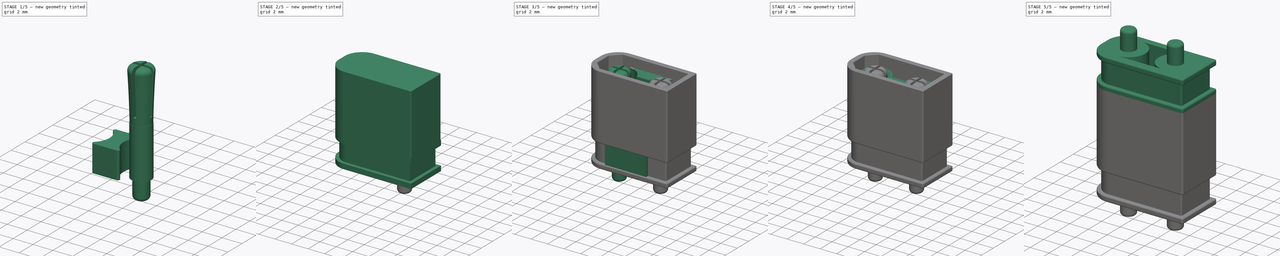
[diagram: build sequence overview — one tinted view per stage of 5, left to right]
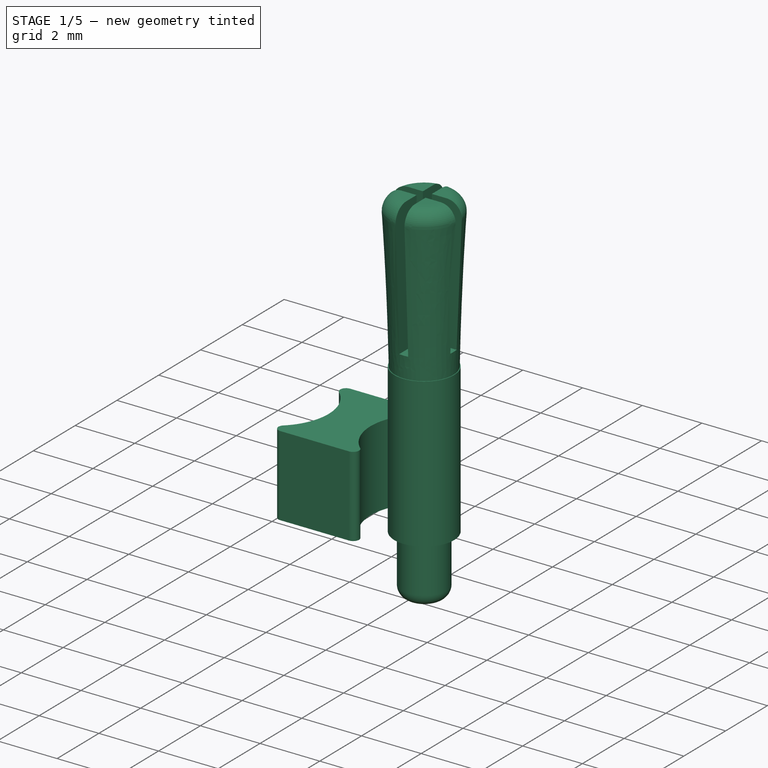
[diagram: stage 1 of 5 — iso view after this stage's code; geometry added in this stage tinted green]
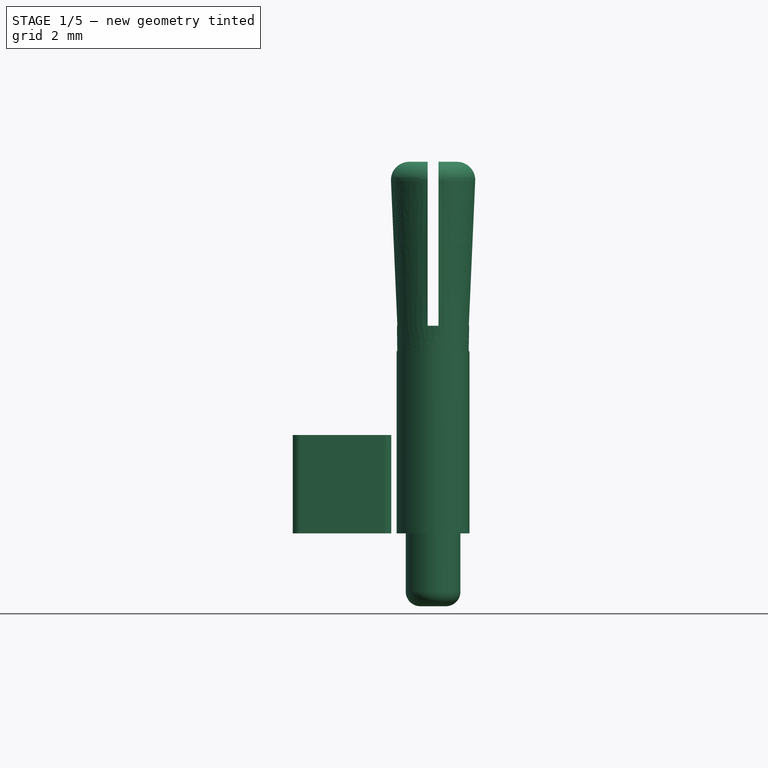
[diagram: stage 1 of 5 — front view after this stage's code; geometry added in this stage tinted green]
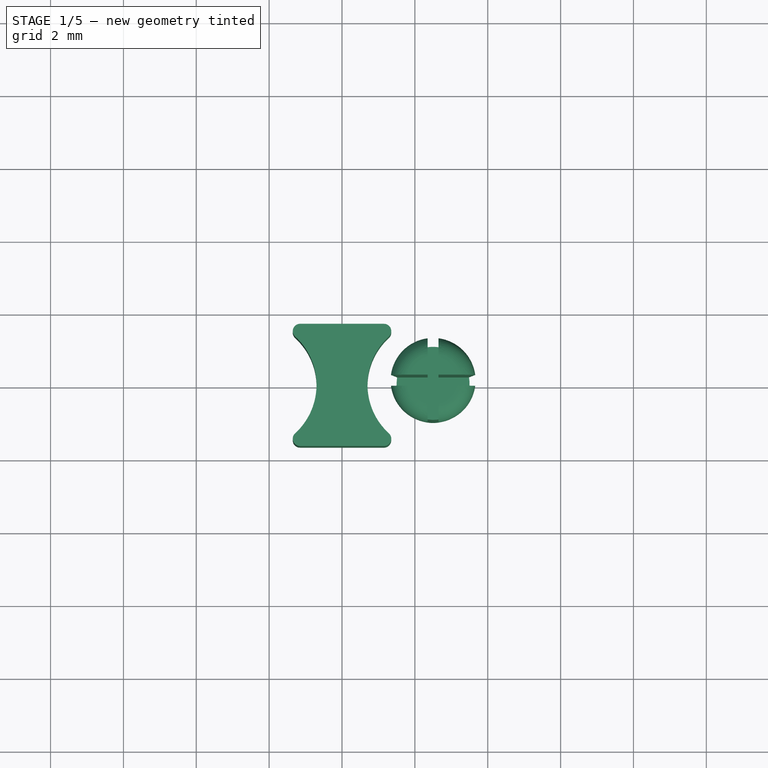
[diagram: stage 1 of 5 — top view after this stage's code; geometry added in this stage tinted green]
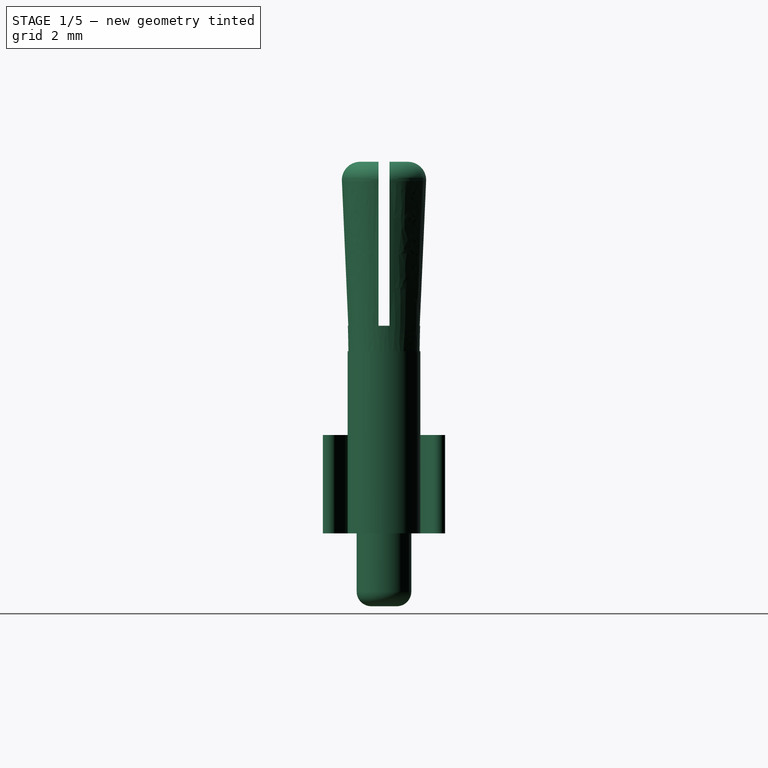
[diagram: stage 1 of 5 — right view after this stage's code; geometry added in this stage tinted green]
FCSTD DOCUMENT  (FreeCAD 0.16R6703 (Git))
Label: XT30U
License: All rights reserved
LicenseURL: http://en.wikipedia.org/wiki/All_rights_reserved
objects: Part::Extrusion×15, Sketcher::SketchObject×13, Part::Fillet×13, Part::MultiFuse×8, Part::Mirroring×8, Part::Cut×7, Part::Compound×5, Part::Offset×2, Part::Chamfer×2, Part::Loft×1
note: 74 computed .brp shape members not serialized (recipe doc carries the construction recipe); baked Part::Feature solids carry a one-line shape summary decoded from their .brp

FEATURE [Sketcher::SketchObject] Sketch002
  Placement = pos=(0,0,0) rot=(1,0,0;3.14159rad)
  sketch-geometry (4):
    g0: ArcOfCircle CenterX=-2.5 CenterY=0 CenterZ=0 NormalX=0 NormalY=0 NormalZ=1 Radius=1.8 StartAngle=5.0841 EndAngle=7.48227
    g1: ArcOfCircle CenterX=2.5 CenterY=0 CenterZ=0 NormalX=0 NormalY=0 NormalZ=1 Radius=1.8 StartAngle=1.94251 EndAngle=4.34068
    g2: LineSegment StartX=-1.84622 StartY=1.67707 StartZ=0 EndX=1.84622 EndY=1.67707 EndZ=0
    g3: LineSegment StartX=-1.84622 StartY=-1.67707 StartZ=0 EndX=1.84622 EndY=-1.67707 EndZ=0
  constraints (12):
    c: PointOnObject(g1,g-1)
    c: DistanceX(g1) = 2.5
    c: Symmetric(g1,g0,g-2)
    c: Radius(g0) = 1.8
    c: Equal(g0,g1)
    c: Coincident(g2,g0)
    c: Coincident(g2,g1)
    c: Horizontal(g2)
    c: Coincident(g3,g0)
    c: Coincident(g3,g1)
    c: Horizontal(g3)
    c: Symmetric(g0,g0,g-1)
FEATURE [Part::Extrusion] Extrude004
  Base = -> Sketch002
  Dir = (0,0,2.7)
  Solid = true
FEATURE [Part::Fillet] Fillet005
  Base = -> Extrude004
  Edges = 4 edges r=0.2: [Edge1,Edge2,Edge5,Edge8]
FEATURE [Sketcher::SketchObject] Sketch003
  Placement = pos=(0,0,0) rot=(1,0,0;3.14159rad)
  sketch-geometry (1):
    g0: Circle CenterX=-2.5 CenterY=0 CenterZ=0 NormalX=0 NormalY=0 NormalZ=1 Radius=1
  constraints (3):
    c: PointOnObject(g0,g-1)
    c: DistanceX(g0) = -2.5
    c: Radius(g0) = 1
FEATURE [Sketcher::SketchObject] Sketch004
  Placement = pos=(0,0,6) rot=(1,0,0;3.14159rad)
  sketch-geometry (1):
    g0: Circle CenterX=-2.5 CenterY=0 CenterZ=0 NormalX=0 NormalY=0 NormalZ=1 Radius=1
  constraints (3):
    c: PointOnObject(g0,g-1)
    c: DistanceX(g0) = -2.5
    c: Radius(g0) = 1
FEATURE [Sketcher::SketchObject] Sketch005
  Placement = pos=(0,0,10.2) rot=(1,0,0;3.14159rad)
  sketch-geometry (1):
    g0: Circle CenterX=-2.5 CenterY=0 CenterZ=0 NormalX=0 NormalY=0 NormalZ=1 Radius=1.2
  constraints (3):
    c: PointOnObject(g0,g-1)
    c: DistanceX(g0) = -2.5
    c: Radius(g0) = 1.2
FEATURE [Part::Loft] Loft  label="pin"
  Closed = false
  Ruled = false
  Sections = -> [Sketch003,Sketch004,Sketch005]
  Solid = true
FEATURE [Part::Fillet] Fillet006  label="pin001"
  Base = -> Loft
  Edges = 1 edges r=0.5: [Edge3]
FEATURE [Sketcher::SketchObject] Sketch006
  Placement = pos=(0,0,10.2) rot=(0,0,1;0rad)
  sketch-geometry (17):
    g0: LineSegment StartX=-2.65 StartY=2.1 StartZ=0 EndX=-2.35 EndY=2.1 EndZ=0
    g1: LineSegment StartX=-2.35 StartY=2.1 StartZ=0 EndX=-2.35 EndY=0.15 EndZ=0
    g2: LineSegment StartX=-2.35 StartY=-2.1 StartZ=0 EndX=-2.65 EndY=-2.1 EndZ=0
    g3: LineSegment StartX=-2.65 StartY=-2.1 StartZ=0 EndX=-2.65 EndY=-0.15 EndZ=0
    g4: LineSegment StartX=-4.36572 StartY=0.15 StartZ=0 EndX=-2.65 EndY=0.15 EndZ=0
    g5: LineSegment StartX=-0.910869 StartY=0.15 StartZ=0 EndX=-0.910869 EndY=-0.15 EndZ=0
    g6: LineSegment StartX=-0.910869 StartY=-0.15 StartZ=0 EndX=-2.35 EndY=-0.15 EndZ=0
    g7: LineSegment StartX=-4.36572 StartY=-0.15 StartZ=0 EndX=-4.36572 EndY=0.15 EndZ=0
    g8: GeomPoint [constr] X=-2.65 Y=0.15 Z=0
    g9: LineSegment [constr] StartX=-2.5 StartY=1.25458 StartZ=0 EndX=-2.5 EndY=-0.7 EndZ=0
    g10: GeomPoint [constr] X=-2.65 Y=-0.15 Z=0
    g11: GeomPoint [constr] X=-2.35 Y=0.15 Z=0
    g12: GeomPoint [constr] X=-2.35 Y=-0.15 Z=0
    g13: LineSegment StartX=-2.35 StartY=0.15 StartZ=0 EndX=-0.910869 EndY=0.15 EndZ=0
    g14: LineSegment StartX=-2.65 StartY=0.15 StartZ=0 EndX=-2.65 EndY=2.1 EndZ=0
    g15: LineSegment StartX=-2.65 StartY=-0.15 StartZ=0 EndX=-4.36572 EndY=-0.15 EndZ=0
    g16: LineSegment StartX=-2.35 StartY=-0.15 StartZ=0 EndX=-2.35 EndY=-2.1 EndZ=0
  constraints (39):
    c: Coincident(g0,g1)
    c: Coincident(g16,g2)
    c: Coincident(g2,g3)
    c: Coincident(g14,g0)
    c: Horizontal(g0)
    c: Horizontal(g2)
    c: Vertical(g1)
    c: Vertical(g3)
    c: Coincident(g13,g5)
    c: Coincident(g5,g6)
    c: Coincident(g15,g7)
    c: Coincident(g7,g4)
    c: Horizontal(g4)
    c: Horizontal(g6)
    c: Vertical(g5)
    c: Vertical(g7)
    c: PointOnObject(g8,g3)
    c: PointOnObject(g8,g4)
    c: Symmetric(g4,g15,g-1)
    c: Equal(g7,g0)
    c: Distance(g7) = 0.3
    c: Vertical(g9)
    c: Symmetric(g0,g0,g9)
    c: DistanceX(g9) = -2.5
    c: PointOnObject(g10,g3)
    c: PointOnObject(g10,g6)
    c: PointOnObject(g11,g4)
    c: PointOnObject(g11,g1)
    c: PointOnObject(g12,g6)
    c: PointOnObject(g12,g1)
    c: Tangent(g4,g13)
    c: PointOnObject(g3,g6)
    c: Coincident(g14,g4)
    c: Tangent(g3,g14)
    c: Tangent(g6,g15)
    c: PointOnObject(g15,g3)
    c: Coincident(g1,g13)
    c: Coincident(g16,g6)
    c: Tangent(g1,g16)
FEATURE [Part::Extrusion] Extrude005
  Base = -> Sketch006
  Dir = (0,0,-4.5)
  Solid = true
FEATURE [Part::Cut] Cut002
  Base = -> Fillet006
  Tool = -> Extrude005
FEATURE [Sketcher::SketchObject] Sketch007
  Placement = pos=(0,0,0) rot=(1,0,0;3.14159rad)
  sketch-geometry (1):
    g0: Circle CenterX=-2.5 CenterY=0 CenterZ=0 NormalX=0 NormalY=0 NormalZ=1 Radius=0.75
  constraints (3):
    c: PointOnObject(g0,g-1)
    c: Radius(g0) = 0.75
    c: DistanceX(g0) = -2.5
FEATURE [Part::Extrusion] Extrude006
  Base = -> Sketch007
  Dir = (0,0,-2)
  Solid = true
FEATURE [Part::MultiFuse] Fusion001  label="pin002"
  Shapes = -> [Extrude006,Cut002]
FEATURE [Part::Extrusion] Extrude007  label="pinHole"
  Base = -> Sketch003
  Dir = (0,0,5)
  Solid = true
FEATURE [Part::Fillet] Fillet013  label="pin003"
  Base = -> Fusion001
  Edges = 1 edges r=0.4: [Edge1]
FEATURE [Part::Mirroring] Part__Mirroring  label="pin003 (Mirror #7)"
  Base = (0,0,0)
  Normal = (1,0,0)
  Source = -> Fillet013
FEATURE [Part::Mirroring] Part__Mirroring007  label="pinHole (Mirror #8)"
  Base = (0,0,0)
  Normal = (1,0,0)
  Source = -> Extrude007
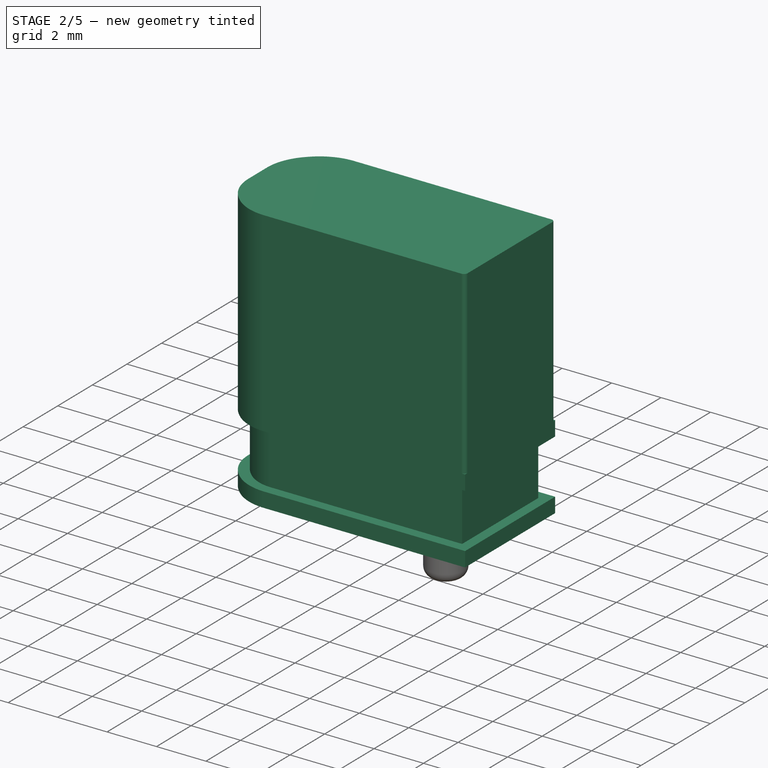
[diagram: stage 2 of 5 — iso view after this stage's code; geometry added in this stage tinted green]
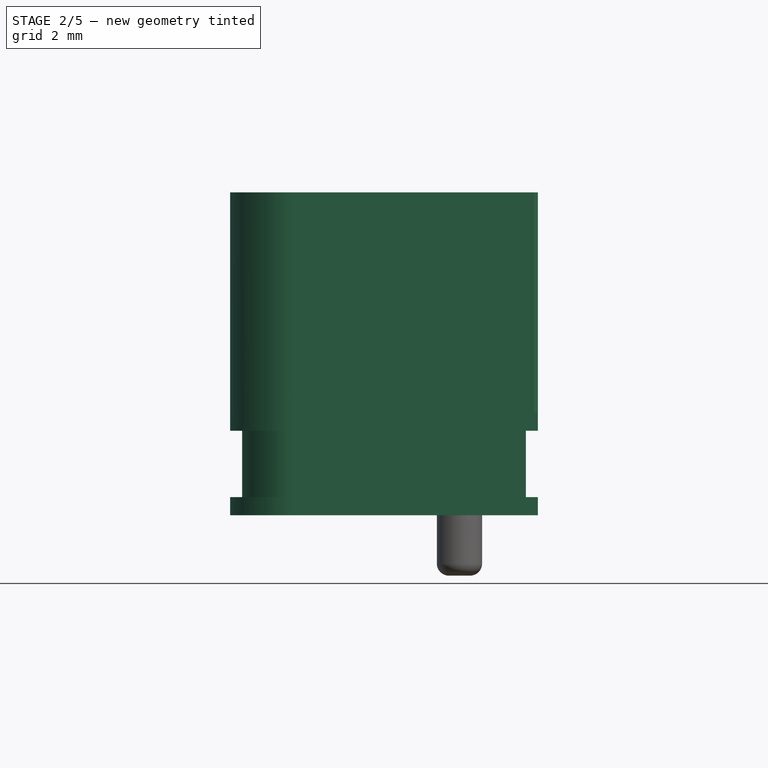
[diagram: stage 2 of 5 — front view after this stage's code; geometry added in this stage tinted green]
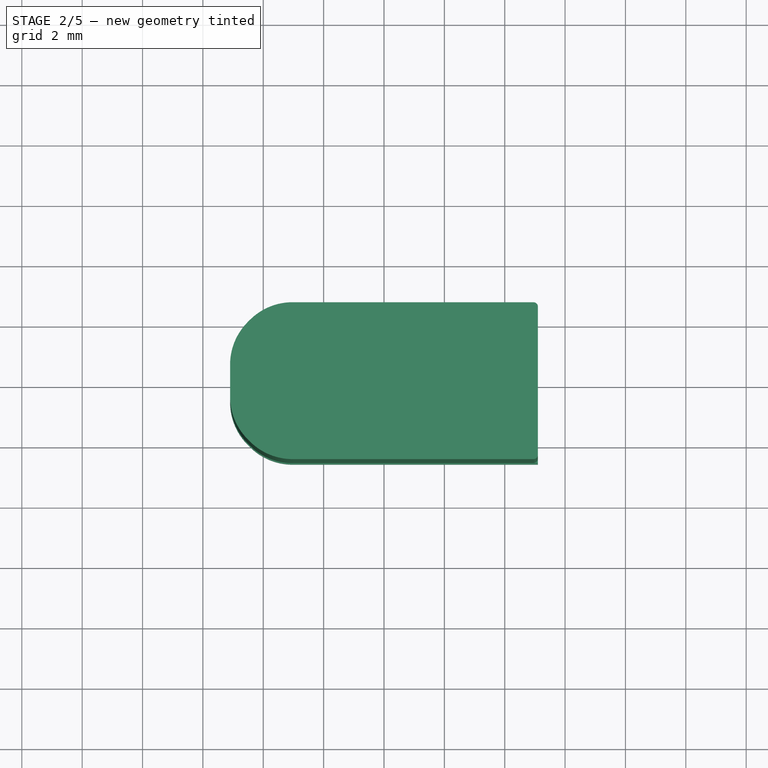
[diagram: stage 2 of 5 — top view after this stage's code; geometry added in this stage tinted green]
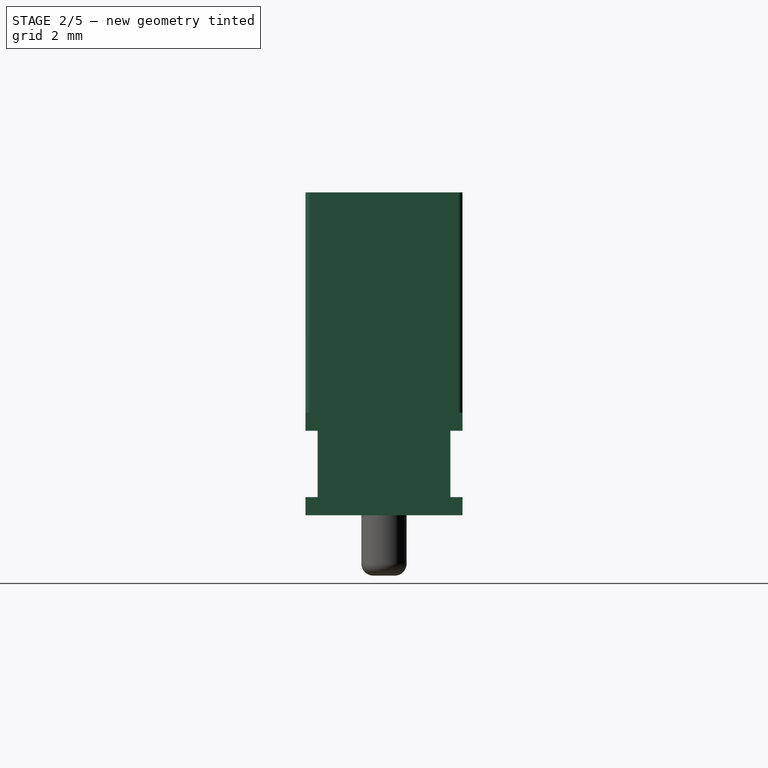
[diagram: stage 2 of 5 — right view after this stage's code; geometry added in this stage tinted green]
FEATURE [Sketcher::SketchObject] Sketch
  sketch-geometry (6):
    g0: LineSegment StartX=-3.53923 StartY=2.6 StartZ=0 EndX=5.1 EndY=2.6 EndZ=0
    g1: LineSegment StartX=5.1 StartY=2.6 StartZ=0 EndX=5.1 EndY=-2.6 EndZ=0
    g2: LineSegment StartX=5.1 StartY=-2.6 StartZ=0 EndX=-3.53923 EndY=-2.6 EndZ=0
    g3: LineSegment StartX=-5.1 StartY=-1.03923 StartZ=0 EndX=-5.1 EndY=1.03923 EndZ=0
    g4: ArcOfCircle CenterX=-2.5 CenterY=0 CenterZ=0 NormalX=0 NormalY=0 NormalZ=1 Radius=2.8 StartAngle=1.95105 EndAngle=2.76134
    g5: ArcOfCircle CenterX=-2.5 CenterY=0 CenterZ=0 NormalX=0 NormalY=0 NormalZ=1 Radius=2.8 StartAngle=3.52184 EndAngle=4.33214
  constraints (19):
    c: Coincident(g0,g1)
    c: Coincident(g1,g2)
    c: Horizontal(g0)
    c: Horizontal(g2)
    c: Vertical(g1)
    c: Vertical(g3)
    c: Distance(g1) = 5.2
    c: PointOnObject(g4,g-1)
    c: DistanceX(g4) = -2.5
    c: Coincident(g0,g4)
    c: Coincident(g3,g4)
    c: Coincident(g5,g4)
    c: Coincident(g3,g5)
    c: Coincident(g2,g5)
    c: Radius(g4) = 2.8
    c: Equal(g4,g5)
    c: DistanceX(g0) = 5.1
    c: DistanceX(g3) = -5.1
    c: Symmetric(g0,g1,g-1)
FEATURE [Part::Extrusion] Extrude
  Base = -> Sketch
  Dir = (0,0,3.4)
  Solid = true
FEATURE [Part::Fillet] Fillet
  Base = -> Extrude
  Edges = 4 edges r=2: [Edge1,Edge2,Edge5,Edge14]
FEATURE [Part::Extrusion] Extrude001
  Base = -> Sketch
  Dir = (0,0,2.2)
  Placement = pos=(0,0,0.6) rot=(0,0,1;0rad)
  Solid = true
FEATURE [Part::Fillet] Fillet001
  Base = -> Extrude001
  Edges = 4 edges r=2: [Edge1,Edge2,Edge5,Edge14]
FEATURE [Part::Offset] Offset
  Fill = false
  Intersection = false
  Join = 2
  Mode = 0
  SelfIntersection = false
  Source = -> Fillet
  Value = -0.4
FEATURE [Part::Cut] Cut
  Base = -> Fillet001
  Tool = -> Offset
FEATURE [Part::Cut] Cut001
  Base = -> Fillet
  Tool = -> Cut
FEATURE [Part::Extrusion] Extrude002
  Base = -> Sketch
  Dir = (0,0,7.3)
  Placement = pos=(0,0,3.4) rot=(0,0,1;0rad)
  Solid = true
FEATURE [Part::Fillet] Fillet003
  Base = -> Extrude002
  Edges = 6 edges: [Edge1 r=2,Edge2 r=2,Edge5 r=2,Edge8 r=0.15,Edge11 r=0.15,Edge14 r=2]
FEATURE [Sketcher::SketchObject] Sketch001
  Placement = pos=(0,0,10.7) rot=(0,0,1;0rad)
  sketch-geometry (6):
    g0: LineSegment StartX=-3.5 StartY=2 StartZ=0 EndX=4.5 EndY=2 EndZ=0
    g1: LineSegment StartX=4.5 StartY=2 StartZ=0 EndX=4.5 EndY=-2 EndZ=0
    g2: LineSegment StartX=4.5 StartY=-2 StartZ=0 EndX=-3.5 EndY=-2 EndZ=0
    g3: LineSegment StartX=-4.5 StartY=-1 StartZ=0 EndX=-4.5 EndY=1 EndZ=0
    g4: LineSegment StartX=-4.5 StartY=1 StartZ=0 EndX=-3.5 EndY=2 EndZ=0
    g5: LineSegment StartX=-4.5 StartY=-1 StartZ=0 EndX=-3.5 EndY=-2 EndZ=0
  constraints (10):
    c: Coincident(g0,g1)
    c: Coincident(g1,g2)
    c: Horizontal(g0)
    c: Horizontal(g2)
    c: Vertical(g1)
    c: Vertical(g3)
    c: Coincident(g3,g4)
    c: Coincident(g0,g4)
    c: Coincident(g2,g5)
    c: Coincident(g3,g5)
FEATURE [Part::Extrusion] Extrude003
  Base = -> Sketch001
  Dir = (0,0,-8)
  Solid = true
FEATURE [Part::Fillet] Fillet004
  Base = -> Extrude003
  Edges = 6 edges r=0.15: [Edge1,Edge2,Edge5,Edge8,Edge11,Edge14]
FEATURE [Part::MultiFuse] Fusion002
  Shapes = -> [Fillet004,Fillet005,Extrude007,Part__Mirroring007]
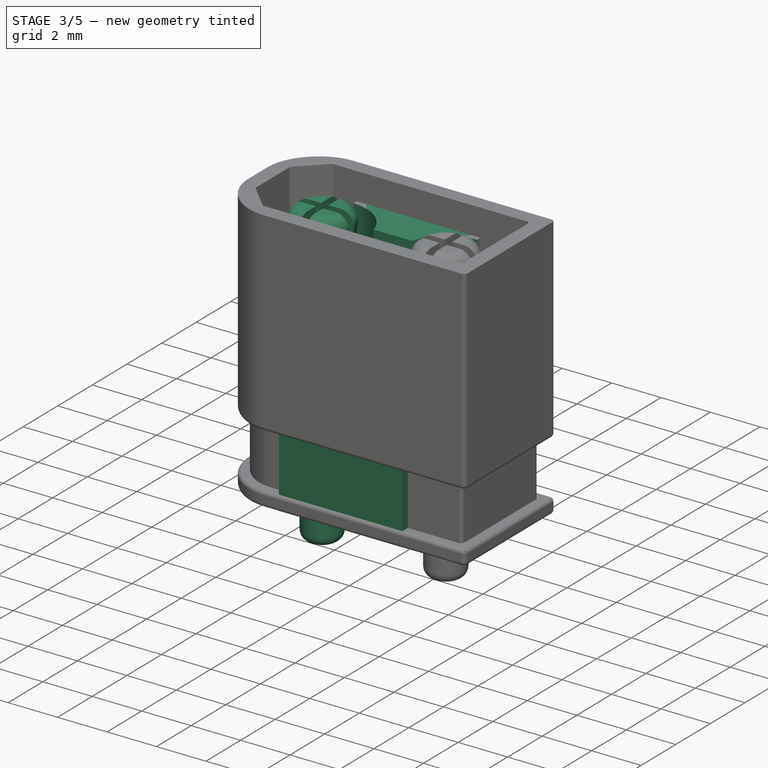
[diagram: stage 3 of 5 — iso view after this stage's code; geometry added in this stage tinted green]
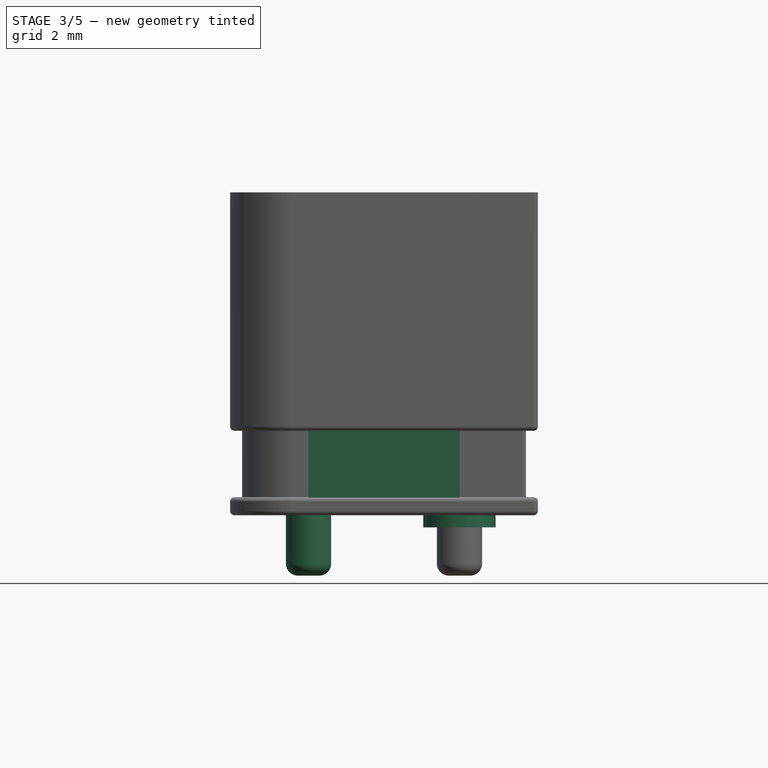
[diagram: stage 3 of 5 — front view after this stage's code; geometry added in this stage tinted green]
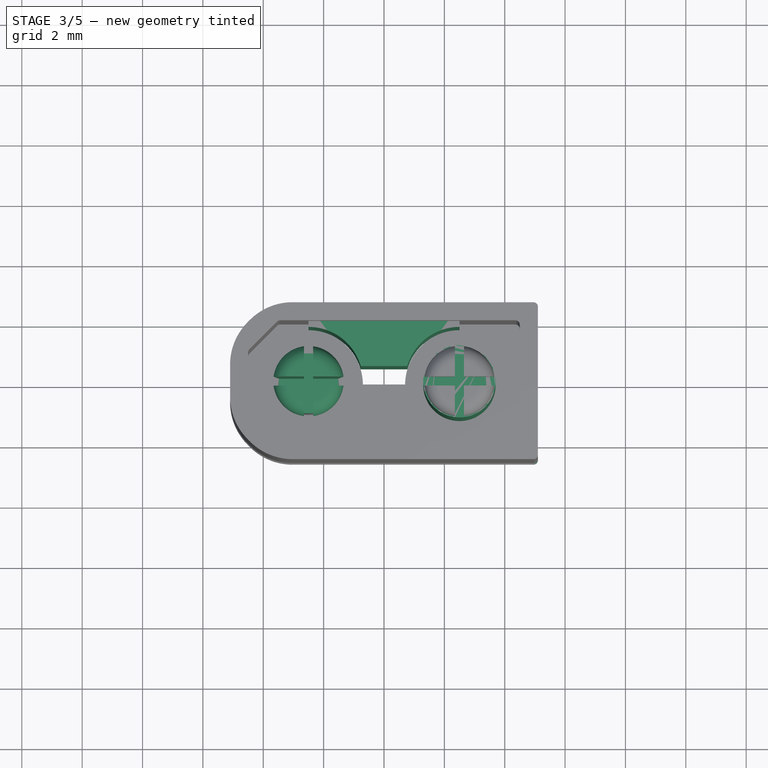
[diagram: stage 3 of 5 — top view after this stage's code; geometry added in this stage tinted green]
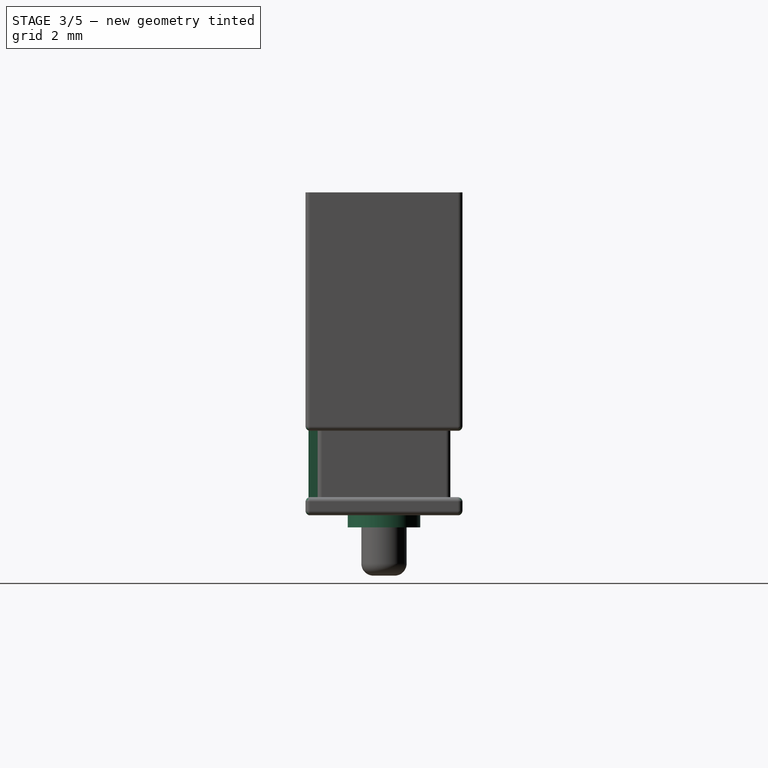
[diagram: stage 3 of 5 — right view after this stage's code; geometry added in this stage tinted green]
FEATURE [Part::Fillet] Fillet002  label="base"
  Base = -> Cut001
  Edges = 15 edges r=0.15: [Edge11,Edge12,Edge13,Edge21,Edge22,Edge23,Edge39,Edge40,Edge43,Edge44,Edge68,Edge69,Edge70,Edge87,Edge88]
FEATURE [Part::MultiFuse] Fusion  label="bodyMale"
  Shapes = -> [Fillet003,Fillet002]
FEATURE [Sketcher::SketchObject] Sketch008
  Placement = pos=(0,0,9.6) rot=(0,0,1;0rad)
  sketch-geometry (5):
    g0: ArcOfCircle CenterX=-2.5 CenterY=0 CenterZ=0 NormalX=0 NormalY=0 NormalZ=1 Radius=1.8 StartAngle=0.28148 EndAngle=1.5708
    g1: LineSegment StartX=-2.5 StartY=1.8 StartZ=0 EndX=-2.5 EndY=2.5 EndZ=0
    g2: LineSegment StartX=-2.5 StartY=2.5 StartZ=0 EndX=0 EndY=2.5 EndZ=0
    g3: LineSegment StartX=0 StartY=2.5 StartZ=0 EndX=0 EndY=0.5 EndZ=0
    g4: LineSegment StartX=0 StartY=0.5 StartZ=0 EndX=-0.770838 EndY=0.5 EndZ=0
  constraints (13):
    c: PointOnObject(g0,g-1)
    c: DistanceX(g0) = -2.5
    c: Radius(g0) = 1.8
    c: Coincident(g0,g1)
    c: Vertical(g1)
    c: Coincident(g1,g2)
    c: PointOnObject(g2,g-2)
    c: Horizontal(g2)
    c: Coincident(g2,g3)
    c: Vertical(g3)
    c: Coincident(g3,g4)
    c: Coincident(g4,g0)
    c: Horizontal(g4)
FEATURE [Part::Extrusion] Extrude009
  Base = -> Sketch008
  Dir = (0,0,-6.2)
  Solid = true
FEATURE [Part::Mirroring] Part__Mirroring001  label="Extrude009 (Mirror #2)"
  Base = (0,0,0)
  Normal = (1,0,0)
  Source = -> Extrude009
FEATURE [Part::MultiFuse] Fusion003
  Shapes = -> [Part__Mirroring001,Extrude009]
FEATURE [Sketcher::SketchObject] Sketch009
  Placement = pos=(0,0,9.6) rot=(0,0,1;0rad)
  sketch-geometry (1):
    g0: Circle CenterX=-2.5 CenterY=0 CenterZ=0 NormalX=0 NormalY=0 NormalZ=1 Radius=1.2
  constraints (2):
    c: DistanceX(g0) = -2.5
    c: Radius(g0) = 1.2
FEATURE [Part::Extrusion] Extrude010  label="pinHole001"
  Base = -> Sketch009
  Dir = (0,0,-10)
  Solid = true
FEATURE [Part::Mirroring] Part__Mirroring003  label="pinHole001 (Mirror #4)"
  Base = (0,0,0)
  Normal = (1,0,0)
  Source = -> Extrude010
FEATURE [Sketcher::SketchObject] Sketch013
  sketch-geometry (5):
    g0: ArcOfCircle CenterX=-2.5 CenterY=0 CenterZ=0 NormalX=0 NormalY=0 NormalZ=1 Radius=1.8 StartAngle=0 EndAngle=1.5708
    g1: LineSegment StartX=-2.5 StartY=1.8 StartZ=0 EndX=-2.5 EndY=2.5 EndZ=0
    g2: LineSegment StartX=-2.5 StartY=2.5 StartZ=0 EndX=0 EndY=2.5 EndZ=0
    g3: LineSegment StartX=0 StartY=2.5 StartZ=0 EndX=0 EndY=0 EndZ=0
    g4: LineSegment StartX=0 StartY=0 StartZ=0 EndX=-0.7 EndY=0 EndZ=0
  constraints (13):
    c: PointOnObject(g0,g-1)
    c: DistanceX(g0) = -2.5
    c: Radius(g0) = 1.8
    c: Coincident(g0,g1)
    c: Vertical(g1)
    c: Coincident(g1,g2)
    c: PointOnObject(g2,g-2)
    c: Horizontal(g2)
    c: Coincident(g2,g3)
    c: Vertical(g3)
    c: Coincident(g3,g4)
    c: Coincident(g4,g0)
    c: Horizontal(g4)
FEATURE [Part::Extrusion] Extrude015
  Base = -> Sketch013
  Dir = (0,0,3.4)
  Solid = true
FEATURE [Part::Mirroring] Part__Mirroring005  label="Extrude009 (Mirror #2)001"
  Base = (0,0,0)
  Normal = (1,0,0)
  Source = -> Extrude015
FEATURE [Part::MultiFuse] Fusion007
  Shapes = -> [Part__Mirroring005,Extrude015]
FEATURE [Part::Mirroring] Part__Mirroring006  label="Fusion007 (Mirror #7)"
  Base = (0,0,0)
  Normal = (0,1,0)
  Source = -> Fusion007
FEATURE [Part::Cut] Cut003  label="bodyMale001"
  Base = -> Fusion
  Tool = -> Fusion002
FEATURE [Part::Compound] Compound004  label="XT30UPB-M"
  Links = -> [Part__Mirroring,Fillet013,Cut003]
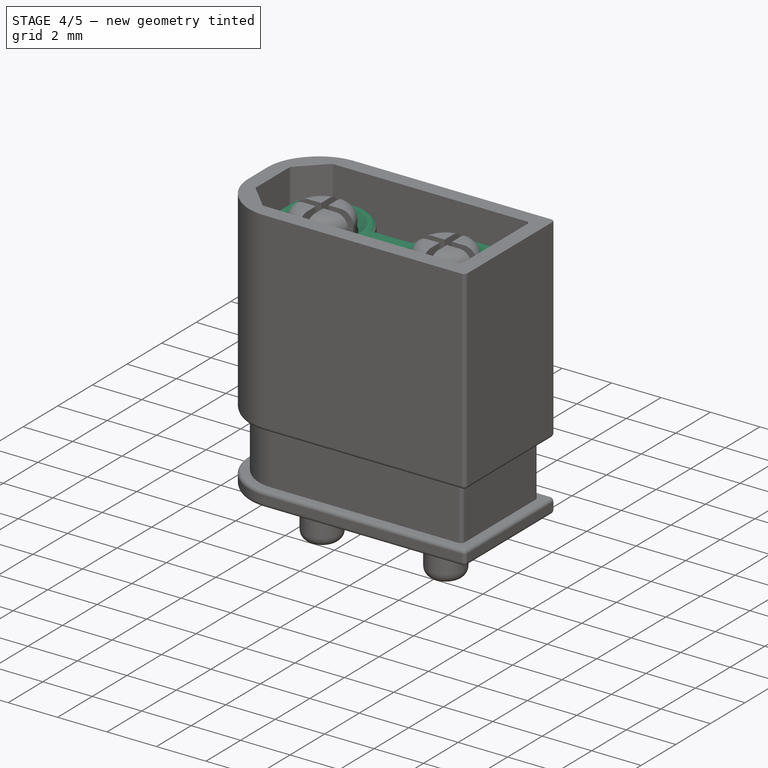
[diagram: stage 4 of 5 — iso view after this stage's code; geometry added in this stage tinted green]
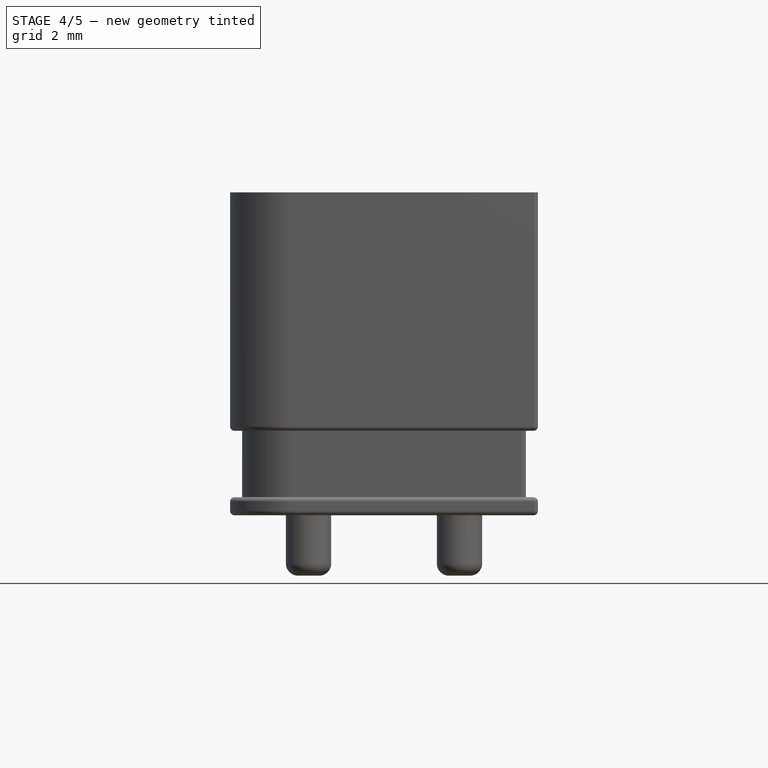
[diagram: stage 4 of 5 — front view after this stage's code; geometry added in this stage tinted green]
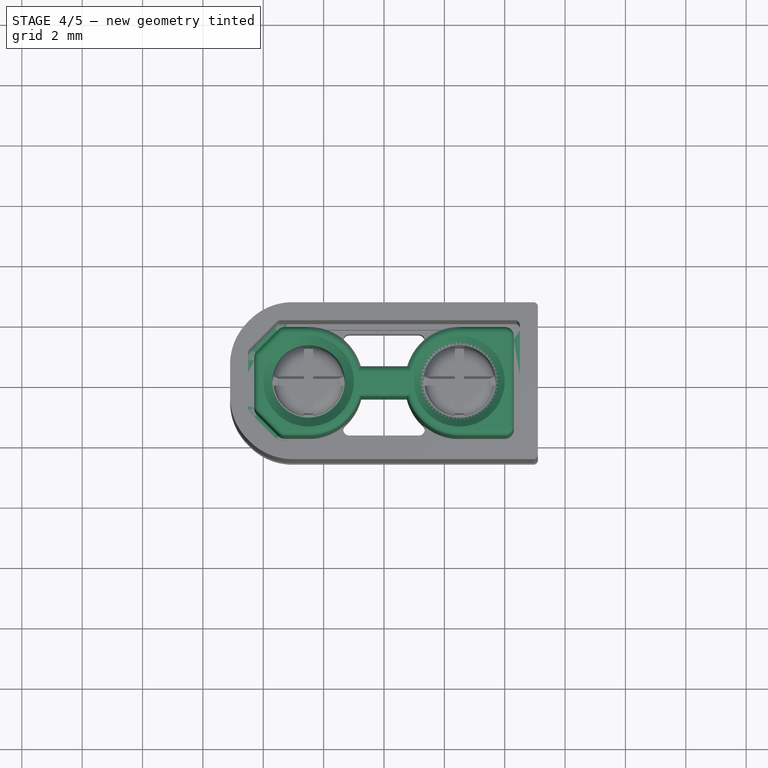
[diagram: stage 4 of 5 — top view after this stage's code; geometry added in this stage tinted green]
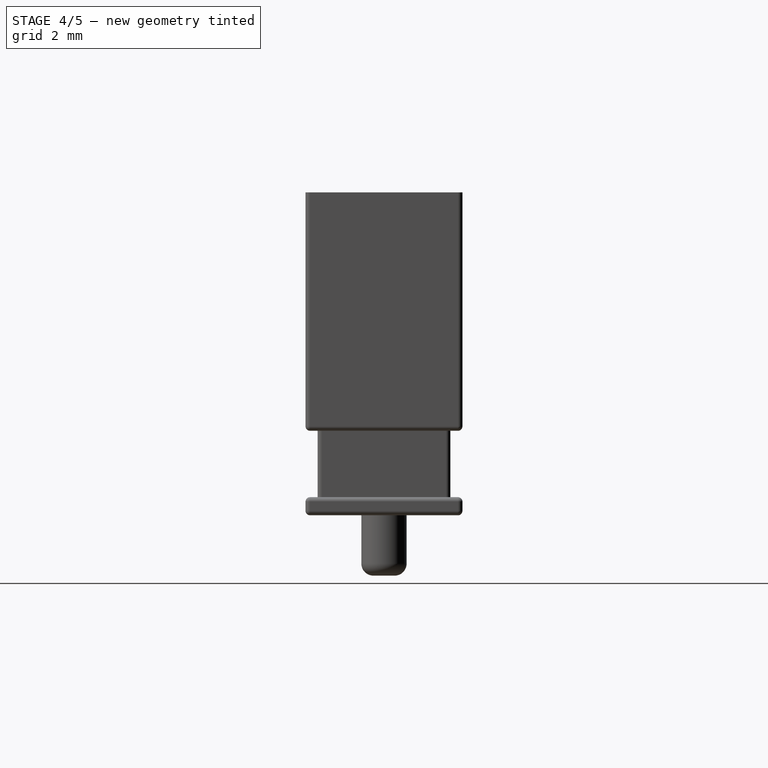
[diagram: stage 4 of 5 — right view after this stage's code; geometry added in this stage tinted green]
FEATURE [Part::Fillet] Fillet007  label="baseFemale"
  Base = -> Cut001
  Edges = 15 edges r=0.15: [Edge11,Edge12,Edge13,Edge21,Edge22,Edge23,Edge39,Edge40,Edge43,Edge44,Edge68,Edge69,Edge70,Edge87,Edge88]
FEATURE [Part::Extrusion] Extrude008
  Base = -> Sketch001
  Dir = (0,0,-10)
  Solid = true
FEATURE [Part::Offset] Offset001
  Fill = false
  Intersection = false
  Join = 2
  Mode = 0
  Placement = pos=(0,0,-0.9) rot=(0,0,1;0rad)
  SelfIntersection = false
  Source = -> Extrude008
  Value = -0.2
FEATURE [Part::Fillet] Fillet008
  Base = -> Offset001
  Edges = 6 edges r=0.3: [Edge2,Edge4,Edge7,Edge10,Edge13,Edge14]
FEATURE [Part::Mirroring] Part__Mirroring002  label="Fusion003 (Mirror #3)"
  Base = (0,0,0)
  Normal = (0,1,0)
  Source = -> Fusion003
FEATURE [Part::Cut] Cut006  label="baseFemale001"
  Base = -> Fillet007
  Tool = -> Fillet008
FEATURE [Part::Fillet] Fillet010  label="baseFemale002"
  Base = -> Cut006
  Edges = 1 edges r=0.15: [Edge153]
FEATURE [Part::MultiFuse] Fusion008
  Shapes = -> [Part__Mirroring002,Extrude010,Part__Mirroring003,Fusion003,Part__Mirroring006,Fusion007]
FEATURE [Part::Cut] Cut008  label="bodyFemale003"
  Base = -> Fillet008
  Tool = -> Fusion008
FEATURE [Part::Chamfer] Chamfer002  label="bodyFemale004"
  Base = -> Cut008
  Edges = 2 edges r=0.3: [Edge26,Edge27]
FEATURE [Part::Fillet] Fillet012  label="bodyFemale005"
  Base = -> Chamfer002
  Edges = 8 edges r=0.2: [Edge4,Edge5,Edge6,Edge7,Edge13,Edge14,Edge15,Edge16]
FEATURE [Part::MultiFuse] Fusion009  label="bodyFemale006"
  Shapes = -> [Fillet012,Fillet010]
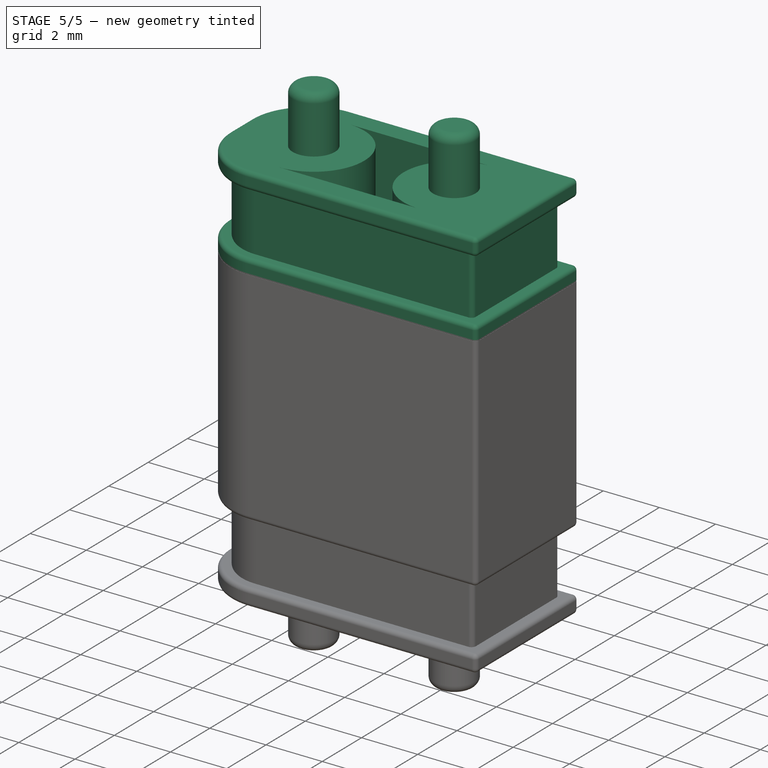
[diagram: stage 5 of 5 — iso view after this stage's code; geometry added in this stage tinted green]
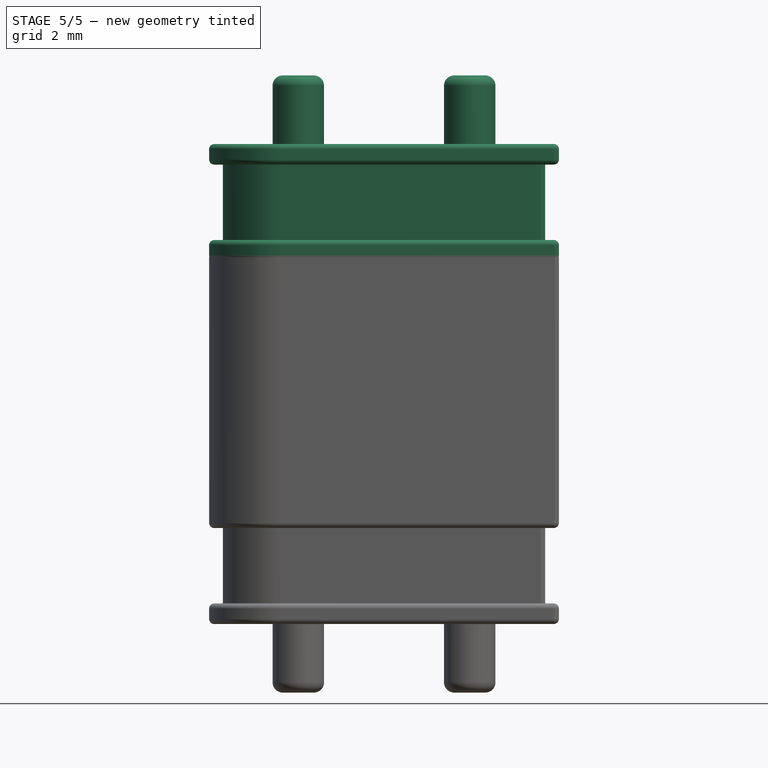
[diagram: stage 5 of 5 — front view after this stage's code; geometry added in this stage tinted green]
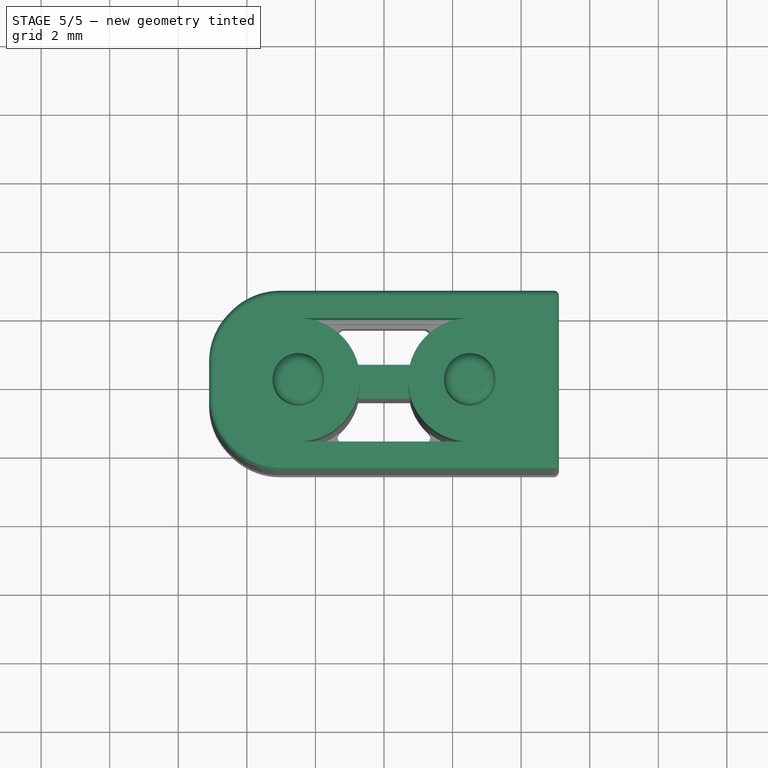
[diagram: stage 5 of 5 — top view after this stage's code; geometry added in this stage tinted green]
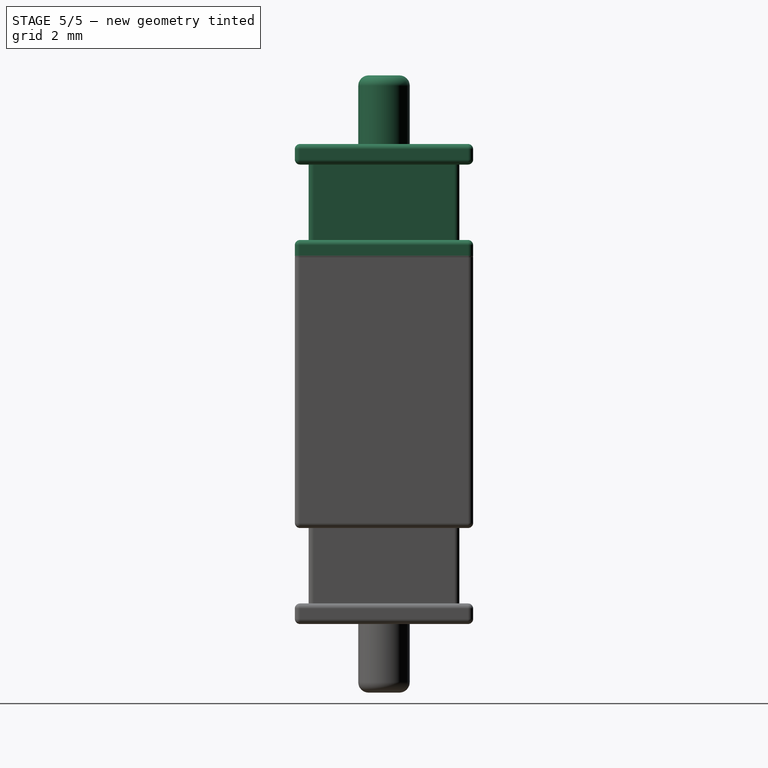
[diagram: stage 5 of 5 — right view after this stage's code; geometry added in this stage tinted green]
FEATURE [Part::Extrusion] Extrude012  label="pinFemale"
  Base = -> Sketch009
  Dir = (0,0,-9.3)
  Placement = pos=(0,0,-0.3) rot=(0,0,1;0rad)
  Solid = true
FEATURE [Sketcher::SketchObject] Sketch011
  Placement = pos=(0,0,9.3) rot=(0,0,1;0rad)
  sketch-geometry (1):
    g0: Circle CenterX=-2.5 CenterY=0 CenterZ=0 NormalX=0 NormalY=0 NormalZ=1 Radius=1
  constraints (3):
    c: PointOnObject(g0,g-1)
    c: Radius(g0) = 1
    c: DistanceX(g0) = -2.5
FEATURE [Part::Extrusion] Extrude013
  Base = -> Sketch011
  Dir = (0,0,-8)
  Solid = true
FEATURE [Part::Cut] Cut007  label="pinFemale001"
  Base = -> Extrude012
  Tool = -> Extrude013
FEATURE [Part::Chamfer] Chamfer001  label="pinFemale002"
  Base = -> Cut007
  Edges = 1 edges r=0.15: [Edge4]
FEATURE [Sketcher::SketchObject] Sketch012
  Placement = pos=(0,0,0) rot=(1,0,0;3.14159rad)
  sketch-geometry (1):
    g0: Circle CenterX=-2.5 CenterY=0 CenterZ=0 NormalX=0 NormalY=0 NormalZ=1 Radius=0.75
  constraints (3):
    c: PointOnObject(g0,g-1)
    c: Radius(g0) = 0.75
    c: DistanceX(g0) = -2.5
FEATURE [Part::Extrusion] Extrude014
  Base = -> Sketch012
  Dir = (0,0,-2)
  Solid = true
FEATURE [Part::Fillet] Fillet011
  Base = -> Extrude014
  Edges = 1 edges r=0.3: [Edge3]
FEATURE [Part::MultiFuse] Fusion006  label="pinFemale003"
  Shapes = -> [Fillet011,Chamfer001]
FEATURE [Part::Mirroring] Part__Mirroring004  label="pinFemale003 (Mirror #5)"
  Base = (0,0,0)
  Normal = (1,0,0)
  Source = -> Fusion006
FEATURE [Part::Compound] Compound001  label="XT30UPB-F"
  Links = -> [Part__Mirroring004,Fusion006,Fusion009]
FEATURE [Part::Compound] Compound  label="XT30UPB-M002"
  Links = -> [Part__Mirroring,Fillet013,Cut003]
FEATURE [Part::Compound] Compound002  label="XT30UPB-F001"
  Links = -> [Part__Mirroring004,Fusion006,Fusion009]
  Placement = pos=(0,0,14) rot=(1,0,0;3.14159rad)
FEATURE [Part::Compound] Compound003  label="XT30UPB-Plugged"
  Links = -> [Compound002,Compound]
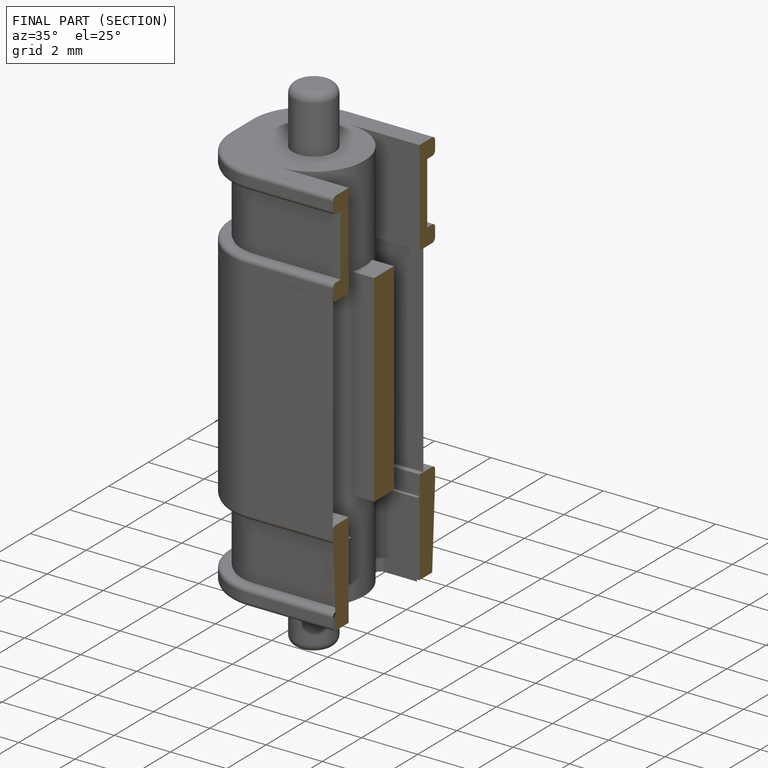
[diagram: finished part — half-section view (interior)]
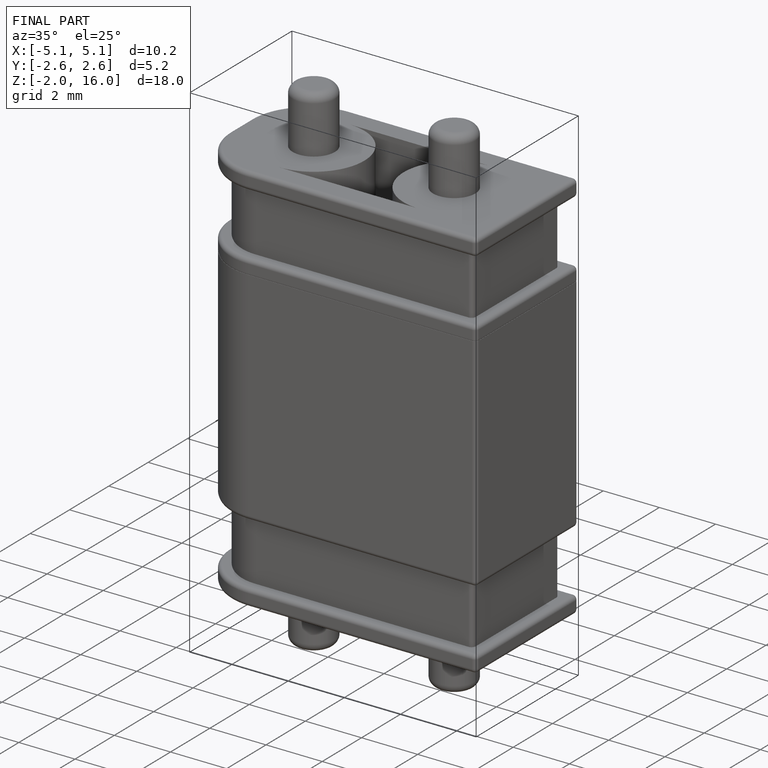
[diagram: finished part — iso view with bounding-box wireframe]
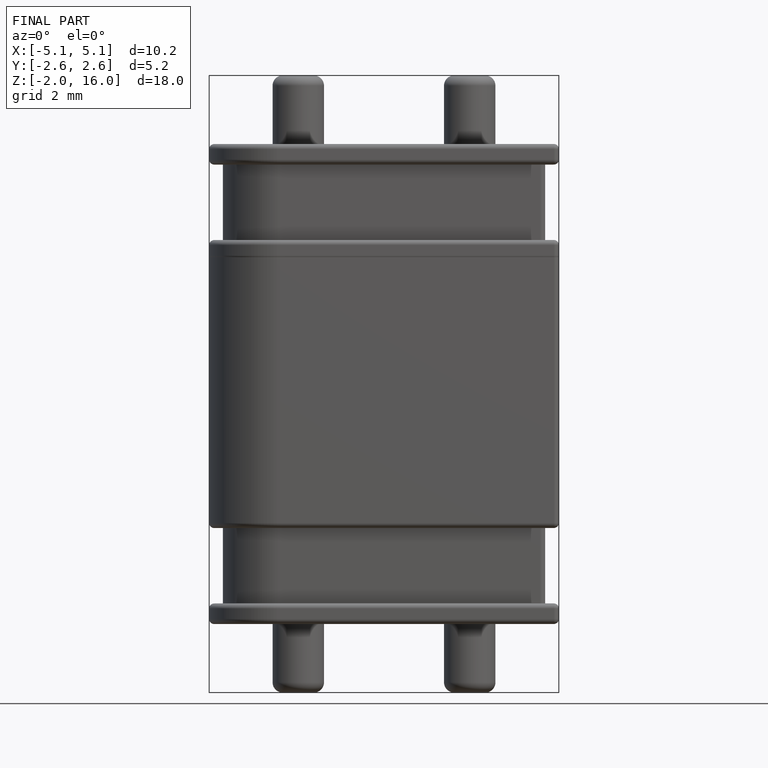
[diagram: finished part — front view with bounding-box wireframe]
